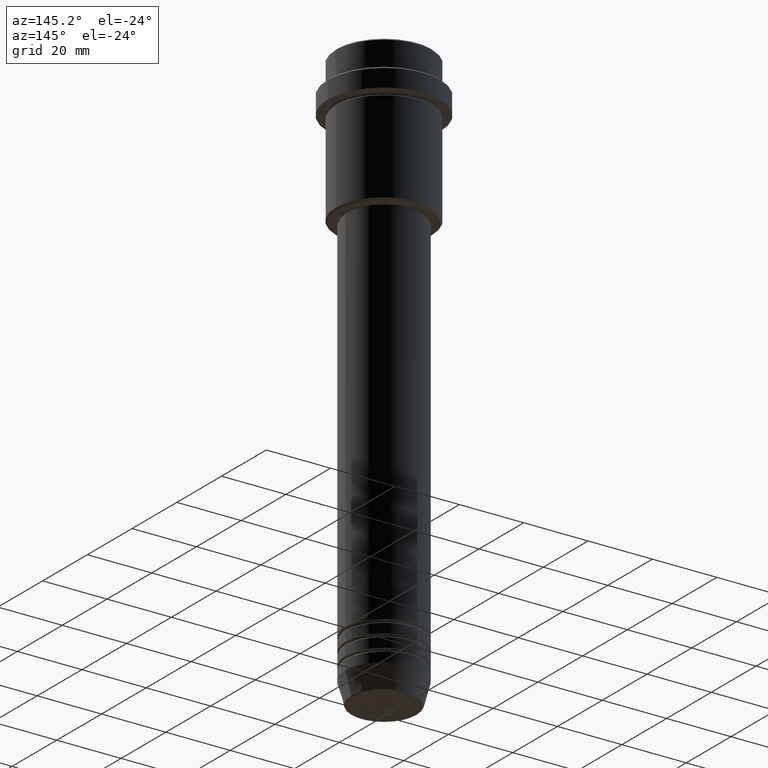
[diagram: clean part render]
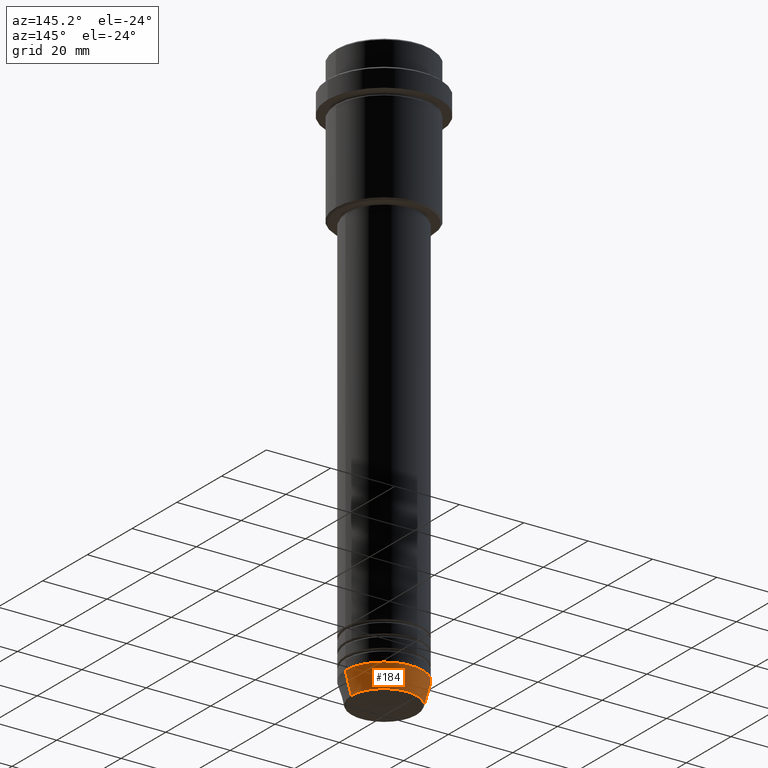
[diagram: same view with one face highlighted and labeled with its STEP entity id]
A machine part, auxiliary view. The second image highlights one B-rep face of the part: STEP entity #184.
In plain terms, the highlighted conical surface has half-angle 15 deg.
Its self-contained STEP definition (entity closure, byte-faithful):
#20 = DIRECTION ( 'NONE',  ( -0.000000000000000000, -0.000000000000000000, 1.000000000000000000 ) ) ;
#51 = ORIENTED_EDGE ( 'NONE', *, *, #299, .T. ) ;
#153 = ORIENTED_EDGE ( 'NONE', *, *, #325, .F. ) ;
#160 = DIRECTION ( 'NONE',  ( 0.2588190451025213501, 0.000000000000000000, 0.9659258262890680902 ) ) ;
#184 = ADVANCED_FACE ( 'NONE', ( #1379 ), #312, .T. ) ;
#194 = VECTOR ( 'NONE', #976, 1000.000000000000000 ) ;
#212 = EDGE_CURVE ( 'NONE', #1289, #932, #861, .T. ) ;
#229 = VERTEX_POINT ( 'NONE', #547 ) ;
#242 = AXIS2_PLACEMENT_3D ( 'NONE', #250, #20, #673 ) ;
#250 = CARTESIAN_POINT ( 'NONE',  ( 0.000000000000000000, 0.000000000000000000, -173.0000000000000284 ) ) ;
#264 = AXIS2_PLACEMENT_3D ( 'NONE', #876, #553, #1213 ) ;
#285 = CARTESIAN_POINT ( 'NONE',  ( 0.000000000000000000, 0.000000000000000000, -173.0000000000000284 ) ) ;
#299 = EDGE_CURVE ( 'NONE', #1031, #1289, #1098, .T. ) ;
#312 = CONICAL_SURFACE ( 'NONE', #1012, 12.00000000000000000, 0.2617993877991500740 ) ;
#325 = EDGE_CURVE ( 'NONE', #229, #932, #1121, .T. ) ;
#382 = CARTESIAN_POINT ( 'NONE',  ( 12.00000000000000000, 0.000000000000000000, -173.0000000000000284 ) ) ;
#433 = CARTESIAN_POINT ( 'NONE',  ( -12.00000000000000000, 1.469576158976823947E-15, -173.0000000000000284 ) ) ;
#538 = CARTESIAN_POINT ( 'NONE',  ( -10.22365507213719837, 1.360806402472383336E-15, -179.6294095225512706 ) ) ;
#547 = CARTESIAN_POINT ( 'NONE',  ( 12.00000000000000000, 0.000000000000000000, -173.0000000000000284 ) ) ;
#553 = DIRECTION ( 'NONE',  ( -0.000000000000000000, -0.000000000000000000, 1.000000000000000000 ) ) ;
#559 = CARTESIAN_POINT ( 'NONE',  ( 10.22365507213719660, 0.000000000000000000, -179.6294095225512706 ) ) ;
#673 = DIRECTION ( 'NONE',  ( 1.000000000000000000, 0.000000000000000000, 0.000000000000000000 ) ) ;
#682 = ORIENTED_EDGE ( 'NONE', *, *, #724, .F. ) ;
#724 = EDGE_CURVE ( 'NONE', #1031, #229, #1236, .T. ) ;
#807 = ORIENTED_EDGE ( 'NONE', *, *, #212, .T. ) ;
#861 = LINE ( 'NONE', #1272, #194 ) ;
#876 = CARTESIAN_POINT ( 'NONE',  ( 0.000000000000000000, 0.000000000000000000, -179.6294095225512706 ) ) ;
#925 = VECTOR ( 'NONE', #160, 1000.000000000000000 ) ;
#932 = VERTEX_POINT ( 'NONE', #433 ) ;
#976 = DIRECTION ( 'NONE',  ( -0.2588190451025213501, 3.169619151431772337E-17, 0.9659258262890680902 ) ) ;
#1012 = AXIS2_PLACEMENT_3D ( 'NONE', #285, #1353, #1238 ) ;
#1031 = VERTEX_POINT ( 'NONE', #559 ) ;
#1098 = CIRCLE ( 'NONE', #264, 10.22365507213719660 ) ;
#1121 = CIRCLE ( 'NONE', #242, 12.00000000000000000 ) ;
#1213 = DIRECTION ( 'NONE',  ( 1.000000000000000000, 0.000000000000000000, 0.000000000000000000 ) ) ;
#1236 = LINE ( 'NONE', #382, #925 ) ;
#1238 = DIRECTION ( 'NONE',  ( 1.000000000000000000, 0.000000000000000000, 0.000000000000000000 ) ) ;
#1272 = CARTESIAN_POINT ( 'NONE',  ( -12.00000000000000000, 1.469576158976823947E-15, -173.0000000000000284 ) ) ;
#1289 = VERTEX_POINT ( 'NONE', #538 ) ;
#1353 = DIRECTION ( 'NONE',  ( -0.000000000000000000, -0.000000000000000000, 1.000000000000000000 ) ) ;
#1365 = EDGE_LOOP ( 'NONE', ( #51, #807, #153, #682 ) ) ;
#1379 = FACE_OUTER_BOUND ( 'NONE', #1365, .T. ) ;